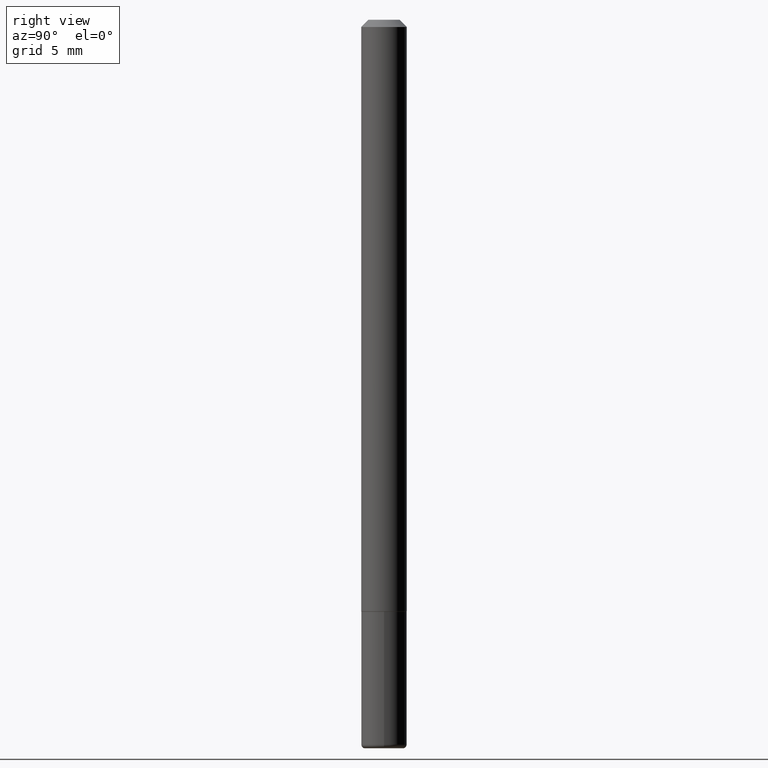
[diagram: clean part render]
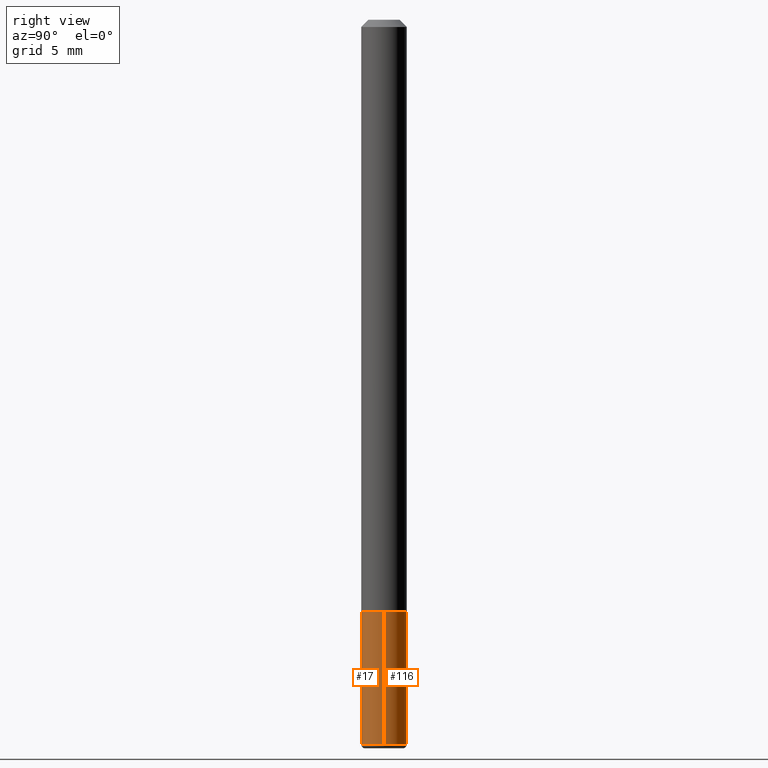
[diagram: same view with one multi-face feature highlighted, each face labeled with its STEP entity id]
A machine part, right view. The highlighted faces form ONE feature: a constant-radius fillet chain: 2 tangent blend faces with common blend radius 1.5875 mm. The faces share edges in the B-rep.
Their STEP definitions:
[1] entity #17 (Cylinder):
#10 = ORIENTED_EDGE ( 'NONE', *, *, #304, .T. ) ;
#16 = AXIS2_PLACEMENT_3D ( 'NONE', #107, #331, #41 ) ;
#17 = ADVANCED_FACE ( 'NONE', ( #88 ), #62, .T. ) ;
#33 = CARTESIAN_POINT ( 'NONE',  ( -0.06250000000000001388, -5.866763310108924432E-15, -1.625000000000000222 ) ) ;
#41 = DIRECTION ( 'NONE',  ( 1.000000000000000000, -6.982962677686261189E-15, 0.000000000000000000 ) ) ;
#56 = CARTESIAN_POINT ( 'NONE',  ( 0.06250000000000001388, -6.110092342975504671E-15, -1.625000000000000222 ) ) ;
#61 = VERTEX_POINT ( 'NONE', #77 ) ;
#62 = CYLINDRICAL_SURFACE ( 'NONE', #126, 0.06250000000000001388 ) ;
#64 = LINE ( 'NONE', #69, #90 ) ;
#69 = CARTESIAN_POINT ( 'NONE',  ( 0.06250000000000001388, -4.364351673553918173E-16, 3.047610484872460571E-30 ) ) ;
#77 = CARTESIAN_POINT ( 'NONE',  ( 0.06249999999999992367, -7.384483031653253552E-15, -1.990000000000000435 ) ) ;
#82 = CARTESIAN_POINT ( 'NONE',  ( -0.06250000000000001388, 4.440892098500627148E-16, -3.074334431409317165E-30 ) ) ;
#83 = EDGE_CURVE ( 'NONE', #226, #123, #297, .T. ) ;
#88 = FACE_OUTER_BOUND ( 'NONE', #229, .T. ) ;
#90 = VECTOR ( 'NONE', #165, 39.37007874015748143 ) ;
#94 = DIRECTION ( 'NONE',  ( -2.445468806185136597E-29, 3.491481338843145583E-15, 1.000000000000000000 ) ) ;
#95 = ORIENTED_EDGE ( 'NONE', *, *, #83, .F. ) ;
#103 = CIRCLE ( 'NONE', #16, 0.06250000000000001388 ) ;
#107 = CARTESIAN_POINT ( 'NONE',  ( 4.866482924308422769E-29, -6.948047864297861094E-15, -1.990000000000000435 ) ) ;
#108 = ORIENTED_EDGE ( 'NONE', *, *, #133, .F. ) ;
#117 = AXIS2_PLACEMENT_3D ( 'NONE', #389, #94, #343 ) ;
#123 = VERTEX_POINT ( 'NONE', #56 ) ;
#124 = LINE ( 'NONE', #82, #268 ) ;
#126 = AXIS2_PLACEMENT_3D ( 'NONE', #348, #356, #258 ) ;
#128 = DIRECTION ( 'NONE',  ( -2.445468806185136877E-29, 3.491481338843145188E-15, 1.000000000000000000 ) ) ;
#133 = EDGE_CURVE ( 'NONE', #221, #226, #124, .T. ) ;
#165 = DIRECTION ( 'NONE',  ( -2.445468806185136877E-29, 3.491481338843145188E-15, 1.000000000000000000 ) ) ;
#167 = ORIENTED_EDGE ( 'NONE', *, *, #330, .T. ) ;
#221 = VERTEX_POINT ( 'NONE', #359 ) ;
#226 = VERTEX_POINT ( 'NONE', #33 ) ;
#229 = EDGE_LOOP ( 'NONE', ( #108, #167, #10, #95 ) ) ;
#258 = DIRECTION ( 'NONE',  ( 1.000000000000000000, -6.982962677686267499E-15, 4.876176775795935793E-29 ) ) ;
#268 = VECTOR ( 'NONE', #128, 39.37007874015748143 ) ;
#297 = CIRCLE ( 'NONE', #117, 0.06250000000000001388 ) ;
#304 = EDGE_CURVE ( 'NONE', #61, #123, #64, .T. ) ;
#330 = EDGE_CURVE ( 'NONE', #221, #61, #103, .T. ) ;
#331 = DIRECTION ( 'NONE',  ( -2.445468806185136597E-29, 3.491481338843145583E-15, 1.000000000000000000 ) ) ;
#343 = DIRECTION ( 'NONE',  ( 1.000000000000000000, -6.982962677686261189E-15, 0.000000000000000000 ) ) ;
#348 = CARTESIAN_POINT ( 'NONE',  ( 0.000000000000000000, 0.000000000000000000, 0.000000000000000000 ) ) ;
#356 = DIRECTION ( 'NONE',  ( -2.445468806185136597E-29, 3.491481338843145583E-15, 1.000000000000000000 ) ) ;
#359 = CARTESIAN_POINT ( 'NONE',  ( -0.06249999999999992367, -6.503958654447799267E-15, -1.990000000000000435 ) ) ;
#389 = CARTESIAN_POINT ( 'NONE',  ( 3.973886810050848091E-29, -5.673657175620113002E-15, -1.625000000000000222 ) ) ;
[2] entity #116 (Cylinder):
#9 = DIRECTION ( 'NONE',  ( 1.000000000000000000, -6.982962677686261189E-15, 0.000000000000000000 ) ) ;
#33 = CARTESIAN_POINT ( 'NONE',  ( -0.06250000000000001388, -5.866763310108924432E-15, -1.625000000000000222 ) ) ;
#56 = CARTESIAN_POINT ( 'NONE',  ( 0.06250000000000001388, -6.110092342975504671E-15, -1.625000000000000222 ) ) ;
#61 = VERTEX_POINT ( 'NONE', #77 ) ;
#64 = LINE ( 'NONE', #69, #90 ) ;
#69 = CARTESIAN_POINT ( 'NONE',  ( 0.06250000000000001388, -4.364351673553918173E-16, 3.047610484872460571E-30 ) ) ;
#73 = DIRECTION ( 'NONE',  ( -2.445468806185136597E-29, 3.491481338843145583E-15, 1.000000000000000000 ) ) ;
#77 = CARTESIAN_POINT ( 'NONE',  ( 0.06249999999999992367, -7.384483031653253552E-15, -1.990000000000000435 ) ) ;
#82 = CARTESIAN_POINT ( 'NONE',  ( -0.06250000000000001388, 4.440892098500627148E-16, -3.074334431409317165E-30 ) ) ;
#90 = VECTOR ( 'NONE', #165, 39.37007874015748143 ) ;
#116 = ADVANCED_FACE ( 'NONE', ( #178 ), #411, .T. ) ;
#123 = VERTEX_POINT ( 'NONE', #56 ) ;
#124 = LINE ( 'NONE', #82, #268 ) ;
#128 = DIRECTION ( 'NONE',  ( -2.445468806185136877E-29, 3.491481338843145188E-15, 1.000000000000000000 ) ) ;
#133 = EDGE_CURVE ( 'NONE', #221, #226, #124, .T. ) ;
#139 = ORIENTED_EDGE ( 'NONE', *, *, #133, .T. ) ;
#145 = EDGE_CURVE ( 'NONE', #61, #221, #344, .T. ) ;
#158 = CARTESIAN_POINT ( 'NONE',  ( 0.000000000000000000, 0.000000000000000000, 0.000000000000000000 ) ) ;
#165 = DIRECTION ( 'NONE',  ( -2.445468806185136877E-29, 3.491481338843145188E-15, 1.000000000000000000 ) ) ;
#166 = ORIENTED_EDGE ( 'NONE', *, *, #304, .F. ) ;
#178 = FACE_OUTER_BOUND ( 'NONE', #339, .T. ) ;
#182 = ORIENTED_EDGE ( 'NONE', *, *, #145, .T. ) ;
#191 = AXIS2_PLACEMENT_3D ( 'NONE', #217, #210, #316 ) ;
#208 = EDGE_CURVE ( 'NONE', #123, #226, #212, .T. ) ;
#210 = DIRECTION ( 'NONE',  ( -2.445468806185136597E-29, 3.491481338843145583E-15, 1.000000000000000000 ) ) ;
#212 = CIRCLE ( 'NONE', #298, 0.06250000000000001388 ) ;
#217 = CARTESIAN_POINT ( 'NONE',  ( 4.866482924308422769E-29, -6.948047864297861094E-15, -1.990000000000000435 ) ) ;
#221 = VERTEX_POINT ( 'NONE', #359 ) ;
#226 = VERTEX_POINT ( 'NONE', #33 ) ;
#268 = VECTOR ( 'NONE', #128, 39.37007874015748143 ) ;
#289 = ORIENTED_EDGE ( 'NONE', *, *, #208, .F. ) ;
#298 = AXIS2_PLACEMENT_3D ( 'NONE', #305, #73, #9 ) ;
#304 = EDGE_CURVE ( 'NONE', #61, #123, #64, .T. ) ;
#305 = CARTESIAN_POINT ( 'NONE',  ( 3.973886810050848091E-29, -5.673657175620113002E-15, -1.625000000000000222 ) ) ;
#308 = AXIS2_PLACEMENT_3D ( 'NONE', #158, #311, #414 ) ;
#311 = DIRECTION ( 'NONE',  ( -2.445468806185136597E-29, 3.491481338843145583E-15, 1.000000000000000000 ) ) ;
#316 = DIRECTION ( 'NONE',  ( 1.000000000000000000, -6.982962677686261189E-15, 0.000000000000000000 ) ) ;
#339 = EDGE_LOOP ( 'NONE', ( #182, #139, #289, #166 ) ) ;
#344 = CIRCLE ( 'NONE', #191, 0.06250000000000001388 ) ;
#359 = CARTESIAN_POINT ( 'NONE',  ( -0.06249999999999992367, -6.503958654447799267E-15, -1.990000000000000435 ) ) ;
#411 = CYLINDRICAL_SURFACE ( 'NONE', #308, 0.06250000000000001388 ) ;
#414 = DIRECTION ( 'NONE',  ( 1.000000000000000000, -6.982962677686267499E-15, 4.876176775795935793E-29 ) ) ;